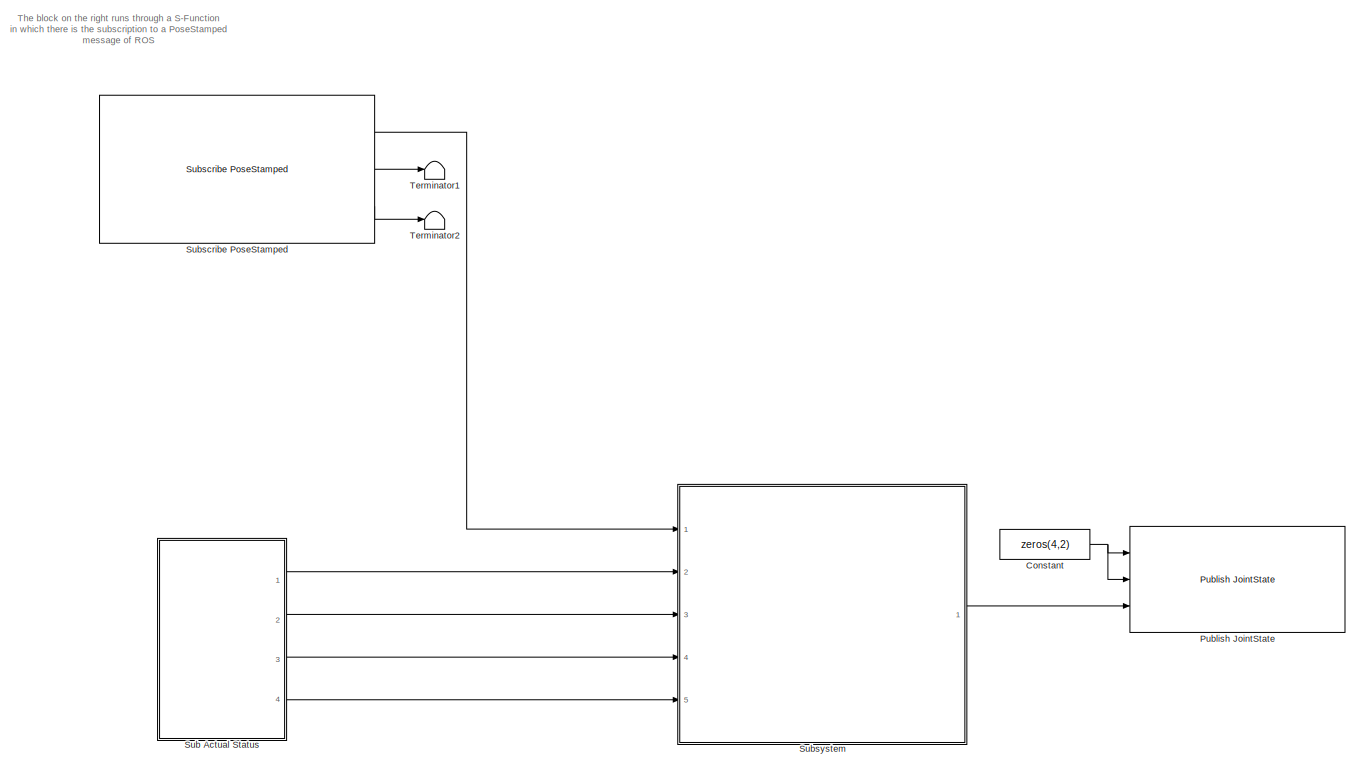
[diagram: root canvas - part 1/2, top right region]
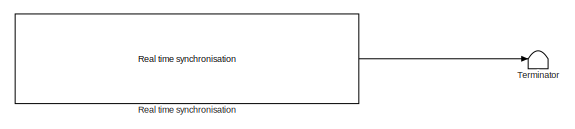
[diagram: root canvas - part 2/2, bottom left region]
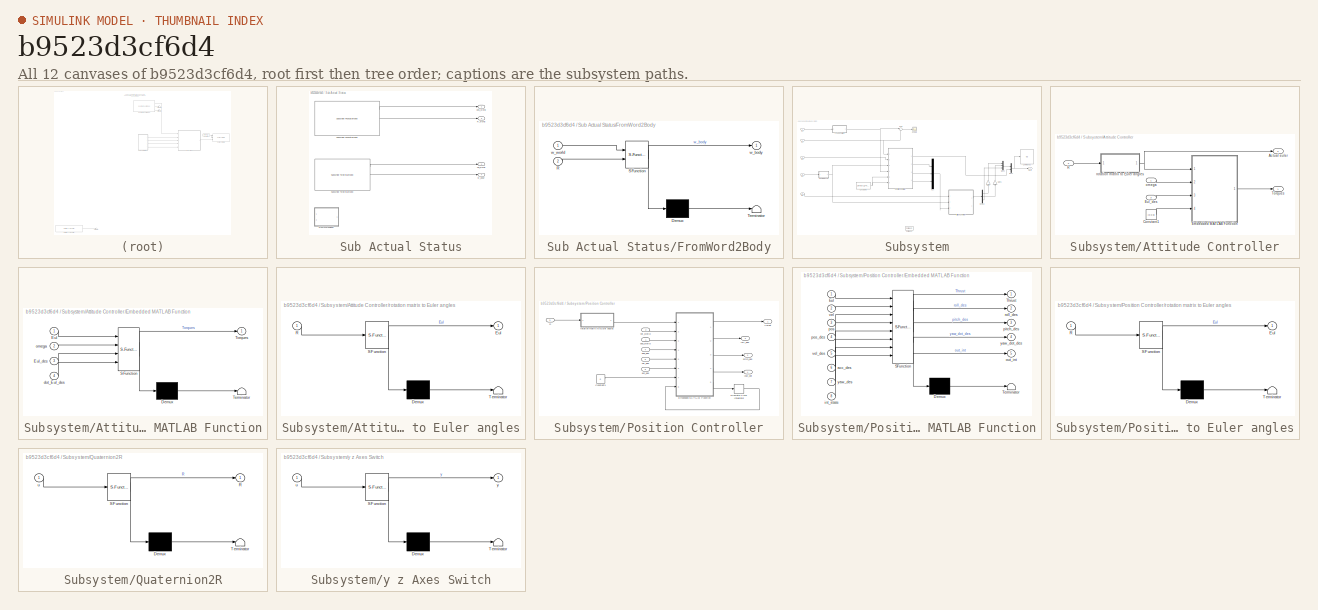
[diagram: thumbnail index - all 12 canvases of the model, root first then tree order]
MODEL slx_b9523d3cf6d4
KIND model
BLOCK [Constant] Constant
  Value = zeros(4,2)
BLOCK [Reference] Publish JointState  REF=sensor_msgs/Publish JointState
  Ports = [3]
  SourceBlock = sensor_msgs/Publish JointState
  SourceType = Publisher JointState
  list_of_robot_ids = char([0:1])
  n_dofs = char(4)
  stepTime = basic_time_step
  topic_postfix = ''
  topic_prefix = '/command/quadrotor_'
BLOCK [Reference] Real time synchronisation  REF=rt_sync/Real time synchronisation
  Ports = [0, 1]
  ShowEveryNumCycles = 1/basic_time_step
  SourceBlock = rt_sync/Real time synchronisation
  minShownDelay = 0.5
  slowDownFactor = 1
  stepTime = basic_time_step
BLOCK [SubSystem] Sub Actual Status
  Ports = [0, 4]
  RequestExecContextInheritance = off
BLOCK [SubSystem] Sub Actual Status/FromWord2Body
  Commented = on
  ErrorFcn = Stateflow.Translate.translate
  PermitHierarchicalResolution = ExplicitOnly
  Ports = [2, 1]
  RequestExecContextInheritance = off
  SFBlockType = MATLAB Function
  TreatAsAtomicUnit = on
BLOCK [Demux] Sub Actual Status/FromWord2Body/ Demux 
  Outputs = 1
  Ports = [1, 1]
BLOCK [S-Function] Sub Actual Status/FromWord2Body/ SFunction 
  EnableBusSupport = on
  FunctionName = sf_sfun
  PortCounts = [2 2]
  Ports = [2, 2]
  Tag = Stateflow S-Function test_pos_ctrl_target_for_each 5
BLOCK [Terminator] Sub Actual Status/FromWord2Body/ Terminator 
BLOCK [Inport] Sub Actual Status/FromWord2Body/R
  IconDisplay = Port number
  Port = 2
BLOCK [Outport] Sub Actual Status/FromWord2Body/w_body
  IconDisplay = Port number
BLOCK [Inport] Sub Actual Status/FromWord2Body/w_world
  IconDisplay = Port number
BLOCK [Outport] Sub Actual Status/R_world 
  IconDisplay = Port number
  Port = 3
BLOCK [Reference] Sub Actual Status/Subscribe PoseStamped  REF=geometry_msgs/Subscribe PoseStamped
  Ports = [0, 3]
  SourceBlock = geometry_msgs/Subscribe PoseStamped
  SourceType = Subscriber PoseStamped
  list_of_robot_ids = char([0:1])
  stepTime = basic_time_step
  topic_postfix = ''
  topic_prefix = '/vrep/pose/quadrotor_'
BLOCK [Reference] Sub Actual Status/Subscribe TwistStamped  REF=geometry_msgs/Subscribe TwistStamped
  Ports = [0, 3]
  SourceBlock = geometry_msgs/Subscribe TwistStamped
  SourceType = Subscriber TwistStamped
  list_of_robot_ids = char([0:1])
  stepTime = basic_time_step
  topic_postfix = ''
  topic_prefix = '/vrep/twist/quadrotor_'
BLOCK [Outport] Sub Actual Status/pos_world
  IconDisplay = Port number
BLOCK [Outport] Sub Actual Status/vel_world
  IconDisplay = Port number
  Port = 2
BLOCK [Outport] Sub Actual Status/w_body
  IconDisplay = Port number
  Port = 4
BLOCK [Reference] Subscribe PoseStamped  REF=geometry_msgs/Subscribe PoseStamped
  Ports = [0, 3]
  SourceBlock = geometry_msgs/Subscribe PoseStamped
  SourceType = Subscriber PoseStamped
  list_of_robot_ids = char([0:1])
  stepTime = basic_time_step
  topic_postfix = '/pose'
  topic_prefix = '/vrep/Quadricopter_target_'
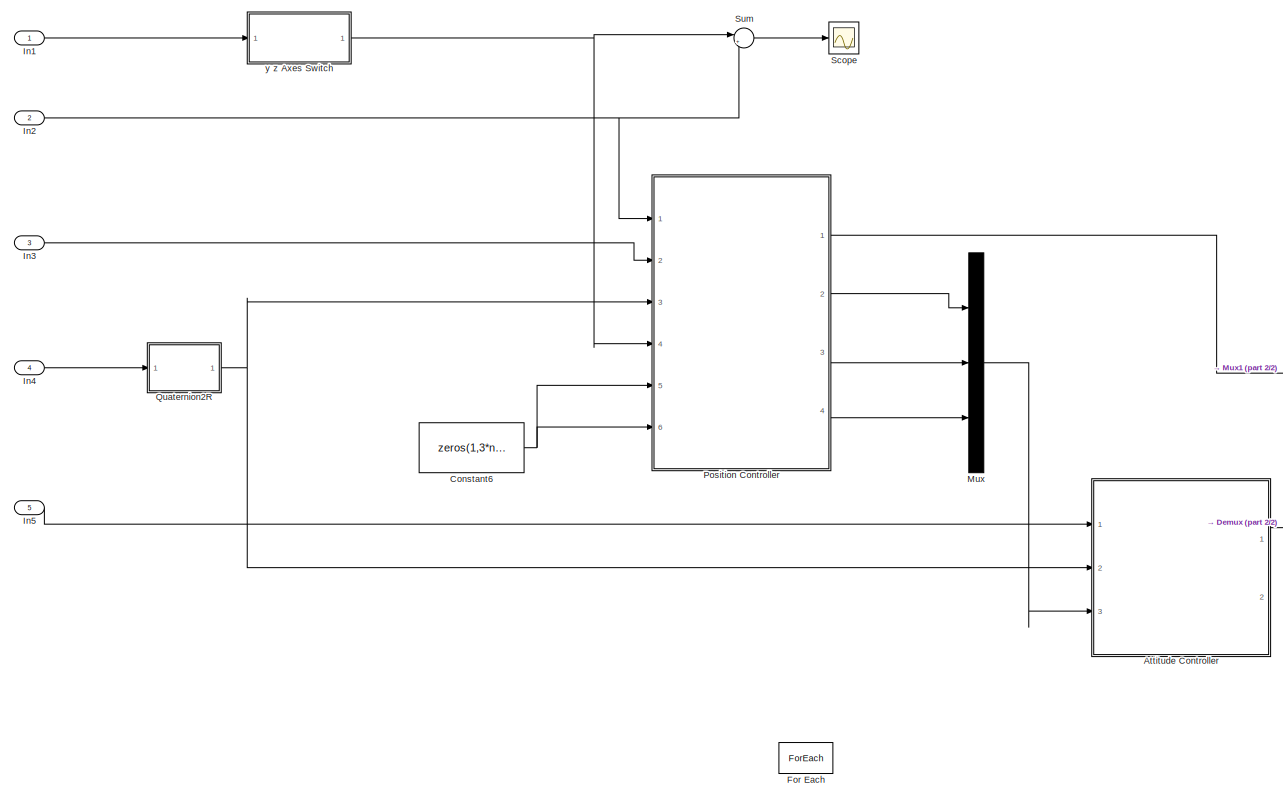
[diagram: Subsystem - part 1/2, most of the canvas]
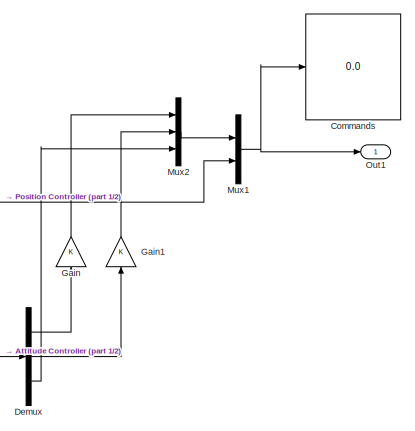
[diagram: Subsystem - part 2/2, middle right region]
BLOCK [SubSystem] Subsystem
  Ports = [5, 1]
  RequestExecContextInheritance = off
BLOCK [SubSystem] Subsystem/Attitude Controller
  Ports = [3, 2]
  RequestExecContextInheritance = off
  SystemSampleTime = IMU_time_step
BLOCK [Outport] Subsystem/Attitude Controller/Actual euler
  IconDisplay = Port number
  Port = 2
BLOCK [Constant] Subsystem/Attitude Controller/Constant1
  Value = [0 0 0]
BLOCK [SubSystem] Subsystem/Attitude Controller/Embedded MATLAB Function
  ErrorFcn = Stateflow.Translate.translate
  PermitHierarchicalResolution = ExplicitOnly
  Ports = [4, 1]
  RequestExecContextInheritance = off
  SFBlockType = MATLAB Function
  TreatAsAtomicUnit = on
BLOCK [Demux] Subsystem/Attitude Controller/Embedded MATLAB Function/ Demux 
  Outputs = 1
  Ports = [1, 1]
BLOCK [S-Function] Subsystem/Attitude Controller/Embedded MATLAB Function/ SFunction 
  EnableBusSupport = on
  FunctionName = sf_sfun
  Parameters = KDP,KDR,KDY,KPP,KPR,KPY
  PortCounts = [4 2]
  Ports = [4, 2]
  Tag = Stateflow S-Function test_pos_ctrl_target_for_each 1
BLOCK [Terminator] Subsystem/Attitude Controller/Embedded MATLAB Function/ Terminator 
BLOCK [Inport] Subsystem/Attitude Controller/Embedded MATLAB Function/Eul
  IconDisplay = Port number
BLOCK [Inport] Subsystem/Attitude Controller/Embedded MATLAB Function/Eul_des
  IconDisplay = Port number
  Port = 3
BLOCK [Outport] Subsystem/Attitude Controller/Embedded MATLAB Function/Torques
  IconDisplay = Port number
BLOCK [Inport] Subsystem/Attitude Controller/Embedded MATLAB Function/dot_Eul_des
  IconDisplay = Port number
  Port = 4
BLOCK [Inport] Subsystem/Attitude Controller/Embedded MATLAB Function/omega
  IconDisplay = Port number
  Port = 2
BLOCK [Inport] Subsystem/Attitude Controller/Eul_des
  IconDisplay = Port number
  Port = 3
BLOCK [Inport] Subsystem/Attitude Controller/R
  IconDisplay = Port number
  Port = 2
BLOCK [Outport] Subsystem/Attitude Controller/Torques
  IconDisplay = Port number
BLOCK [Inport] Subsystem/Attitude Controller/omega
  IconDisplay = Port number
BLOCK [SubSystem] Subsystem/Attitude Controller/rotation matrix to Euler angles
  ErrorFcn = Stateflow.Translate.translate
  PermitHierarchicalResolution = ExplicitOnly
  Ports = [1, 1]
  RequestExecContextInheritance = off
  SFBlockType = MATLAB Function
  TreatAsAtomicUnit = on
BLOCK [Demux] Subsystem/Attitude Controller/rotation matrix to Euler angles/ Demux 
  Outputs = 1
  Ports = [1, 1]
BLOCK [S-Function] Subsystem/Attitude Controller/rotation matrix to Euler angles/ SFunction 
  EnableBusSupport = on
  FunctionName = sf_sfun
  PortCounts = [1 2]
  Ports = [1, 2]
  Tag = Stateflow S-Function test_pos_ctrl_target_for_each 26
BLOCK [Terminator] Subsystem/Attitude Controller/rotation matrix to Euler angles/ Terminator 
BLOCK [Outport] Subsystem/Attitude Controller/rotation matrix to Euler angles/Eul
  IconDisplay = Port number
BLOCK [Inport] Subsystem/Attitude Controller/rotation matrix to Euler angles/R
  IconDisplay = Port number
BLOCK [Display] Subsystem/Commands
  Decimation = 1
  Ports = [1]
BLOCK [Constant] Subsystem/Constant6
  Value = zeros(1,3*n_robots)
BLOCK [Demux] Subsystem/Demux
  DisplayOption = bar
  Outputs = 3
  Ports = [1, 3]
BLOCK [ForEach] Subsystem/For Each
  DisableCoverage = on
  IndexMode = One-based
  Ports = []
BLOCK [Gain] Subsystem/Gain
  OutDataTypeStr = Inherit: Inherit via internal rule
  ParamDataTypeStr = Inherit: Inherit via internal rule
  SaturateOnIntegerOverflow = off
BLOCK [Gain] Subsystem/Gain1
  OutDataTypeStr = Inherit: Inherit via internal rule
  ParamDataTypeStr = Inherit: Inherit via internal rule
  SaturateOnIntegerOverflow = off
BLOCK [Inport] Subsystem/In1
  IconDisplay = Port number
  Partition = on
  PartitionDimension = 2
  PartitionWidth = 1
BLOCK [Inport] Subsystem/In2
  IconDisplay = Port number
  Partition = on
  PartitionDimension = 2
  PartitionWidth = 1
  Port = 2
BLOCK [Inport] Subsystem/In3
  IconDisplay = Port number
  Partition = on
  PartitionDimension = 2
  PartitionWidth = 1
  Port = 3
BLOCK [Inport] Subsystem/In4
  IconDisplay = Port number
  Partition = on
  PartitionDimension = 2
  PartitionWidth = 1
  Port = 4
BLOCK [Inport] Subsystem/In5
  IconDisplay = Port number
  Partition = on
  PartitionDimension = 2
  PartitionWidth = 1
  Port = 5
BLOCK [Mux] Subsystem/Mux
  DisplayOption = bar
  Inputs = 3
  Ports = [3, 1]
BLOCK [Mux] Subsystem/Mux1
  DisplayOption = bar
  Inputs = 2
  Ports = [2, 1]
BLOCK [Mux] Subsystem/Mux2
  DisplayOption = bar
  Inputs = 3
  Ports = [3, 1]
BLOCK [Outport] Subsystem/Out1
  ConcatenationDimension = 2
  IconDisplay = Port number
BLOCK [SubSystem] Subsystem/Position Controller
  Ports = [6, 4]
  RequestExecContextInheritance = off
  SystemSampleTime = VICON_time_step
BLOCK [Constant] Subsystem/Position Controller/Constant3
  Value = 0
BLOCK [DiscreteIntegrator] Subsystem/Position Controller/Discrete-Time Integrator
  ICPrevOutput = DiscIntNeverNeededParam
  ICPrevScaledInput = DiscIntNeverNeededParam
  InitialCondition = [0 0 0]
  Ports = [1, 1]
  SampleTime = -1
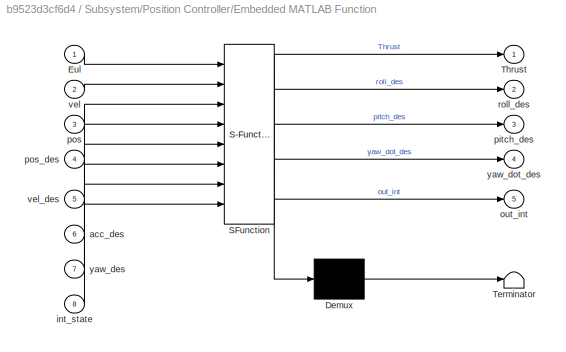
BLOCK [SubSystem] Subsystem/Position Controller/Embedded MATLAB Function
  ErrorFcn = Stateflow.Translate.translate
  PermitHierarchicalResolution = ExplicitOnly
  Ports = [8, 5]
  RequestExecContextInheritance = off
  SFBlockType = MATLAB Function
  TreatAsAtomicUnit = on
BLOCK [Demux] Subsystem/Position Controller/Embedded MATLAB Function/ Demux 
  Outputs = 1
  Ports = [1, 1]
BLOCK [S-Function] Subsystem/Position Controller/Embedded MATLAB Function/ SFunction 
  EnableBusSupport = on
  FunctionName = sf_sfun
  Parameters = g,kd,ki,kp,m0,max_pitch,max_roll
  PortCounts = [8 6]
  Ports = [8, 6]
  Tag = Stateflow S-Function test_pos_ctrl_target_for_each 3
BLOCK [Terminator] Subsystem/Position Controller/Embedded MATLAB Function/ Terminator 
BLOCK [Inport] Subsystem/Position Controller/Embedded MATLAB Function/Eul
  IconDisplay = Port number
BLOCK [Outport] Subsystem/Position Controller/Embedded MATLAB Function/Thrust
  IconDisplay = Port number
BLOCK [Inport] Subsystem/Position Controller/Embedded MATLAB Function/acc_des
  IconDisplay = Port number
  Port = 6
BLOCK [Inport] Subsystem/Position Controller/Embedded MATLAB Function/int_state
  IconDisplay = Port number
  Port = 8
BLOCK [Outport] Subsystem/Position Controller/Embedded MATLAB Function/out_int
  IconDisplay = Port number
  Port = 5
BLOCK [Outport] Subsystem/Position Controller/Embedded MATLAB Function/pitch_des
  IconDisplay = Port number
  Port = 3
BLOCK [Inport] Subsystem/Position Controller/Embedded MATLAB Function/pos
  IconDisplay = Port number
  Port = 3
BLOCK [Inport] Subsystem/Position Controller/Embedded MATLAB Function/pos_des
  IconDisplay = Port number
  Port = 4
BLOCK [Outport] Subsystem/Position Controller/Embedded MATLAB Function/roll_des
  IconDisplay = Port number
  Port = 2
BLOCK [Inport] Subsystem/Position Controller/Embedded MATLAB Function/vel
  IconDisplay = Port number
  Port = 2
BLOCK [Inport] Subsystem/Position Controller/Embedded MATLAB Function/vel_des
  IconDisplay = Port number
  Port = 5
BLOCK [Inport] Subsystem/Position Controller/Embedded MATLAB Function/yaw_des
  IconDisplay = Port number
  Port = 7
BLOCK [Outport] Subsystem/Position Controller/Embedded MATLAB Function/yaw_dot_des
  IconDisplay = Port number
  Port = 4
BLOCK [Inport] Subsystem/Position Controller/R
  IconDisplay = Port number
  Port = 3
BLOCK [Outport] Subsystem/Position Controller/Thrust
  IconDisplay = Port number
BLOCK [Inport] Subsystem/Position Controller/acc_des
  IconDisplay = Port number
  Port = 6
BLOCK [Outport] Subsystem/Position Controller/pitch_des
  IconDisplay = Port number
  Port = 3
BLOCK [Inport] Subsystem/Position Controller/pos_des
  IconDisplay = Port number
  Port = 4
BLOCK [Inport] Subsystem/Position Controller/pos_world
  IconDisplay = Port number
BLOCK [Outport] Subsystem/Position Controller/roll_des
  IconDisplay = Port number
  Port = 2
BLOCK [SubSystem] Subsystem/Position Controller/rotation matrix to Euler angles
  ErrorFcn = Stateflow.Translate.translate
  PermitHierarchicalResolution = ExplicitOnly
  Ports = [1, 1]
  RequestExecContextInheritance = off
  SFBlockType = MATLAB Function
  TreatAsAtomicUnit = on
BLOCK [Demux] Subsystem/Position Controller/rotation matrix to Euler angles/ Demux 
  Outputs = 1
  Ports = [1, 1]
BLOCK [S-Function] Subsystem/Position Controller/rotation matrix to Euler angles/ SFunction 
  EnableBusSupport = on
  FunctionName = sf_sfun
  PortCounts = [1 2]
  Ports = [1, 2]
  Tag = Stateflow S-Function test_pos_ctrl_target_for_each 4
BLOCK [Terminator] Subsystem/Position Controller/rotation matrix to Euler angles/ Terminator 
BLOCK [Outport] Subsystem/Position Controller/rotation matrix to Euler angles/Eul
  IconDisplay = Port number
BLOCK [Inport] Subsystem/Position Controller/rotation matrix to Euler angles/R
  IconDisplay = Port number
BLOCK [Inport] Subsystem/Position Controller/vel_des
  IconDisplay = Port number
  Port = 5
BLOCK [Inport] Subsystem/Position Controller/vel_world
  IconDisplay = Port number
  Port = 2
BLOCK [Outport] Subsystem/Position Controller/yaw_dot
  IconDisplay = Port number
  Port = 4
BLOCK [SubSystem] Subsystem/Quaternion2R
  ErrorFcn = Stateflow.Translate.translate
  PermitHierarchicalResolution = ExplicitOnly
  Ports = [1, 1]
  RequestExecContextInheritance = off
  SFBlockType = MATLAB Function
  TreatAsAtomicUnit = on
BLOCK [Demux] Subsystem/Quaternion2R/ Demux 
  Outputs = 1
  Ports = [1, 1]
BLOCK [S-Function] Subsystem/Quaternion2R/ SFunction 
  EnableBusSupport = on
  FunctionName = sf_sfun
  PortCounts = [1 2]
  Ports = [1, 2]
  Tag = Stateflow S-Function test_pos_ctrl_target_for_each 2
BLOCK [Terminator] Subsystem/Quaternion2R/ Terminator 
BLOCK [Outport] Subsystem/Quaternion2R/R
  IconDisplay = Port number
BLOCK [Inport] Subsystem/Quaternion2R/u
  IconDisplay = Port number
BLOCK [Scope] Subsystem/Scope
  Commented = on
  DataFormat = StructureWithTime
  Floating = off
  NumInputPorts = 1
  Ports = [1]
  SampleTime = 0
  ShowLegends = off
BLOCK [Sum] Subsystem/Sum
  IconShape = round
  InputSameDT = off
  Inputs = |+-
  OutDataTypeStr = Inherit: Inherit via internal rule
  Ports = [2, 1]
  SaturateOnIntegerOverflow = off
BLOCK [SubSystem] Subsystem/y z Axes Switch
  ErrorFcn = Stateflow.Translate.translate
  PermitHierarchicalResolution = ExplicitOnly
  Ports = [1, 1]
  RequestExecContextInheritance = off
  SFBlockType = MATLAB Function
  TreatAsAtomicUnit = on
BLOCK [Demux] Subsystem/y z Axes Switch/ Demux 
  Outputs = 1
  Ports = [1, 1]
BLOCK [S-Function] Subsystem/y z Axes Switch/ SFunction 
  EnableBusSupport = on
  FunctionName = sf_sfun
  PortCounts = [1 2]
  Ports = [1, 2]
  Tag = Stateflow S-Function test_pos_ctrl_target_for_each 6
BLOCK [Terminator] Subsystem/y z Axes Switch/ Terminator 
BLOCK [Inport] Subsystem/y z Axes Switch/u
  IconDisplay = Port number
BLOCK [Outport] Subsystem/y z Axes Switch/y
  IconDisplay = Port number
BLOCK [Terminator] Terminator
BLOCK [Terminator] Terminator1
BLOCK [Terminator] Terminator2
ANNOTATION (root): The block on the right runs through a S-Function in which there is the subscription to a PoseStamped message of ROS
NET Constant:1 -> Publish JointState:1, Publish JointState:2
LINE Real time synchronisation:1 -> Terminator:1
LINE Sub Actual Status/Subscribe PoseStamped:1 -> Sub Actual Status/pos_world:1
LINE Sub Actual Status/Subscribe PoseStamped:2 -> Sub Actual Status/R_world :1
LINE Sub Actual Status/Subscribe TwistStamped:1 -> Sub Actual Status/vel_world:1
LINE Sub Actual Status/Subscribe TwistStamped:2 -> Sub Actual Status/w_body:1
LINE Sub Actual Status:1 -> Subsystem:2
LINE Sub Actual Status:2 -> Subsystem:3
LINE Sub Actual Status:3 -> Subsystem:4
LINE Sub Actual Status:4 -> Subsystem:5
LINE Subscribe PoseStamped:1 -> Subsystem:1
LINE Subscribe PoseStamped:2 -> Terminator1:1
LINE Subscribe PoseStamped:3 -> Terminator2:1
LINE Subsystem/Attitude Controller/Constant1:1 -> Subsystem/Attitude Controller/Embedded MATLAB Function:4
LINE Subsystem/Attitude Controller/Embedded MATLAB Function:1 -> Subsystem/Attitude Controller/Torques:1
LINE Subsystem/Attitude Controller/Eul_des:1 -> Subsystem/Attitude Controller/Embedded MATLAB Function:3
LINE Subsystem/Attitude Controller/R:1 -> Subsystem/Attitude Controller/rotation matrix to Euler angles:1
LINE Subsystem/Attitude Controller/omega:1 -> Subsystem/Attitude Controller/Embedded MATLAB Function:2
NET Subsystem/Attitude Controller/rotation matrix to Euler angles:1 -> Subsystem/Attitude Controller/Actual euler:1, Subsystem/Attitude Controller/Embedded MATLAB Function:1
LINE Subsystem/Attitude Controller:1 -> Subsystem/Demux:1
NET Subsystem/Constant6:1 -> Subsystem/Position Controller:5, Subsystem/Position Controller:6
LINE Subsystem/Demux:1 -> Subsystem/Gain:1
LINE Subsystem/Demux:2 -> Subsystem/Gain1:1
LINE Subsystem/Demux:3 -> Subsystem/Mux2:3
LINE Subsystem/Gain1:1 -> Subsystem/Mux2:2
LINE Subsystem/Gain:1 -> Subsystem/Mux2:1
LINE Subsystem/In1:1 -> Subsystem/y z Axes Switch:1
NET Subsystem/In2:1 -> Subsystem/Position Controller:1, Subsystem/Sum:2
LINE Subsystem/In3:1 -> Subsystem/Position Controller:2
LINE Subsystem/In4:1 -> Subsystem/Quaternion2R:1
LINE Subsystem/In5:1 -> Subsystem/Attitude Controller:1
NET Subsystem/Mux1:1 -> Subsystem/Commands:1, Subsystem/Out1:1
LINE Subsystem/Mux2:1 -> Subsystem/Mux1:1
LINE Subsystem/Mux:1 -> Subsystem/Attitude Controller:3
LINE Subsystem/Position Controller/Constant3:1 -> Subsystem/Position Controller/Embedded MATLAB Function:7
LINE Subsystem/Position Controller/Discrete-Time Integrator:1 -> Subsystem/Position Controller/Embedded MATLAB Function:8
LINE Subsystem/Position Controller/Embedded MATLAB Function:1 -> Subsystem/Position Controller/Thrust:1
LINE Subsystem/Position Controller/Embedded MATLAB Function:2 -> Subsystem/Position Controller/roll_des:1
LINE Subsystem/Position Controller/Embedded MATLAB Function:3 -> Subsystem/Position Controller/pitch_des:1
LINE Subsystem/Position Controller/Embedded MATLAB Function:4 -> Subsystem/Position Controller/yaw_dot:1
LINE Subsystem/Position Controller/Embedded MATLAB Function:5 -> Subsystem/Position Controller/Discrete-Time Integrator:1
LINE Subsystem/Position Controller/R:1 -> Subsystem/Position Controller/rotation matrix to Euler angles:1
LINE Subsystem/Position Controller/acc_des:1 -> Subsystem/Position Controller/Embedded MATLAB Function:6
LINE Subsystem/Position Controller/pos_des:1 -> Subsystem/Position Controller/Embedded MATLAB Function:4
LINE Subsystem/Position Controller/pos_world:1 -> Subsystem/Position Controller/Embedded MATLAB Function:3
LINE Subsystem/Position Controller/rotation matrix to Euler angles:1 -> Subsystem/Position Controller/Embedded MATLAB Function:1
LINE Subsystem/Position Controller/vel_des:1 -> Subsystem/Position Controller/Embedded MATLAB Function:5
LINE Subsystem/Position Controller/vel_world:1 -> Subsystem/Position Controller/Embedded MATLAB Function:2
LINE Subsystem/Position Controller:1 -> Subsystem/Mux1:2
LINE Subsystem/Position Controller:2 -> Subsystem/Mux:1
LINE Subsystem/Position Controller:3 -> Subsystem/Mux:2
LINE Subsystem/Position Controller:4 -> Subsystem/Mux:3
NET Subsystem/Quaternion2R:1 -> Subsystem/Attitude Controller:2, Subsystem/Position Controller:3
LINE Subsystem/Sum:1 -> Subsystem/Scope:1
NET Subsystem/y z Axes Switch:1 -> Subsystem/Position Controller:4, Subsystem/Sum:1
LINE Subsystem:1 -> Publish JointState:3
note: NET lines group one-source signal fan-out (src -> all destinations, sorted); 1:1 wires keep LINE
